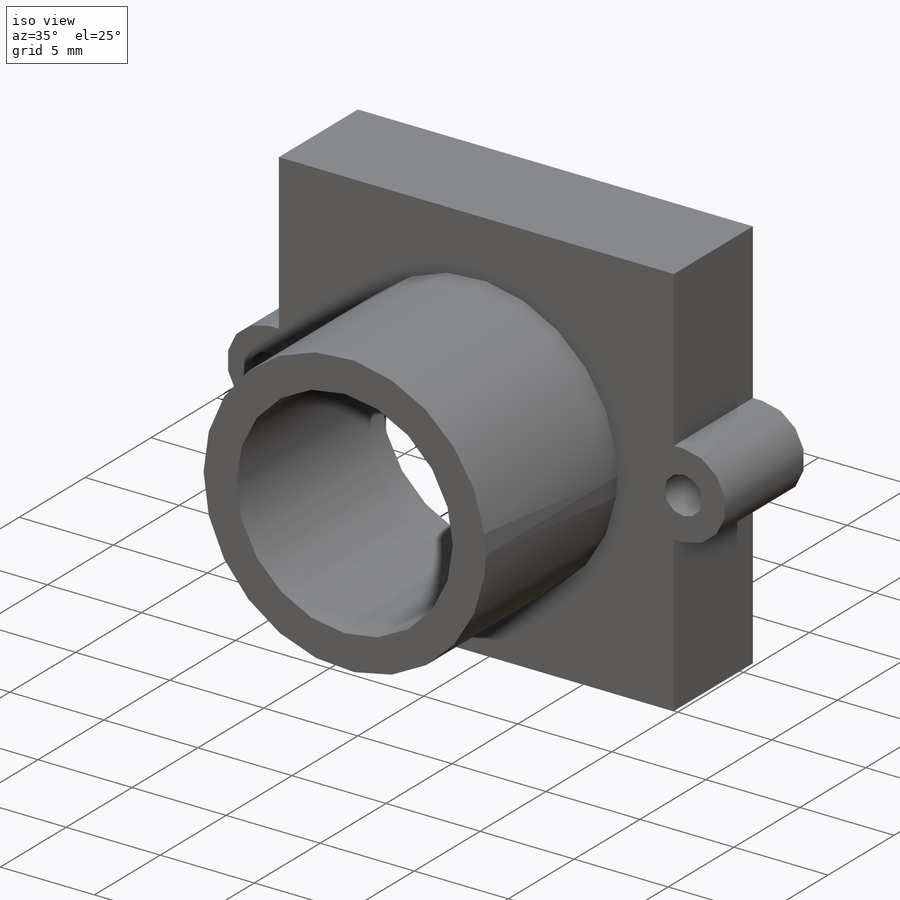
[diagram: iso view]
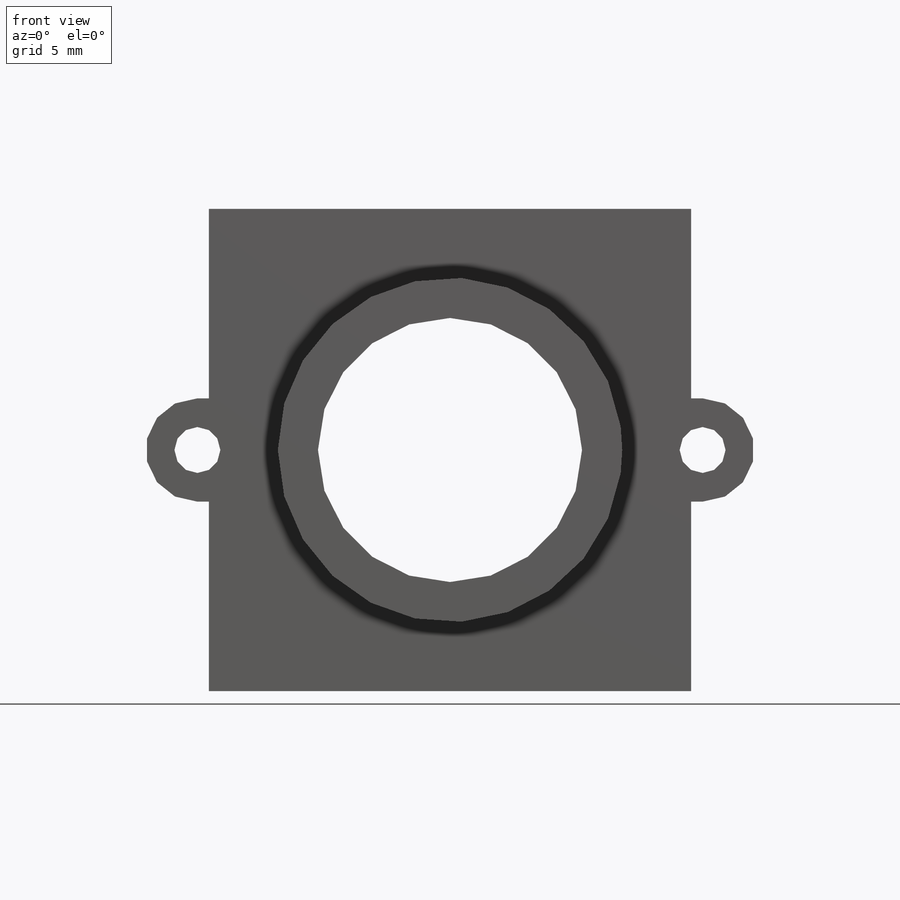
[diagram: front view]
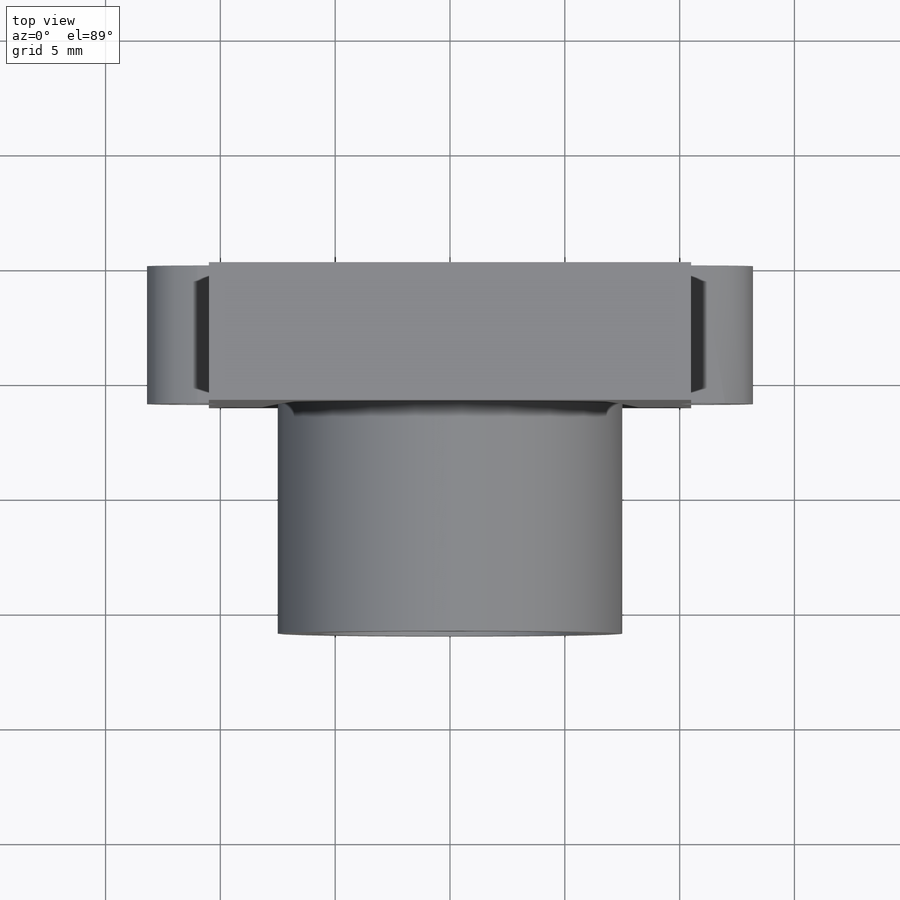
[diagram: top view]
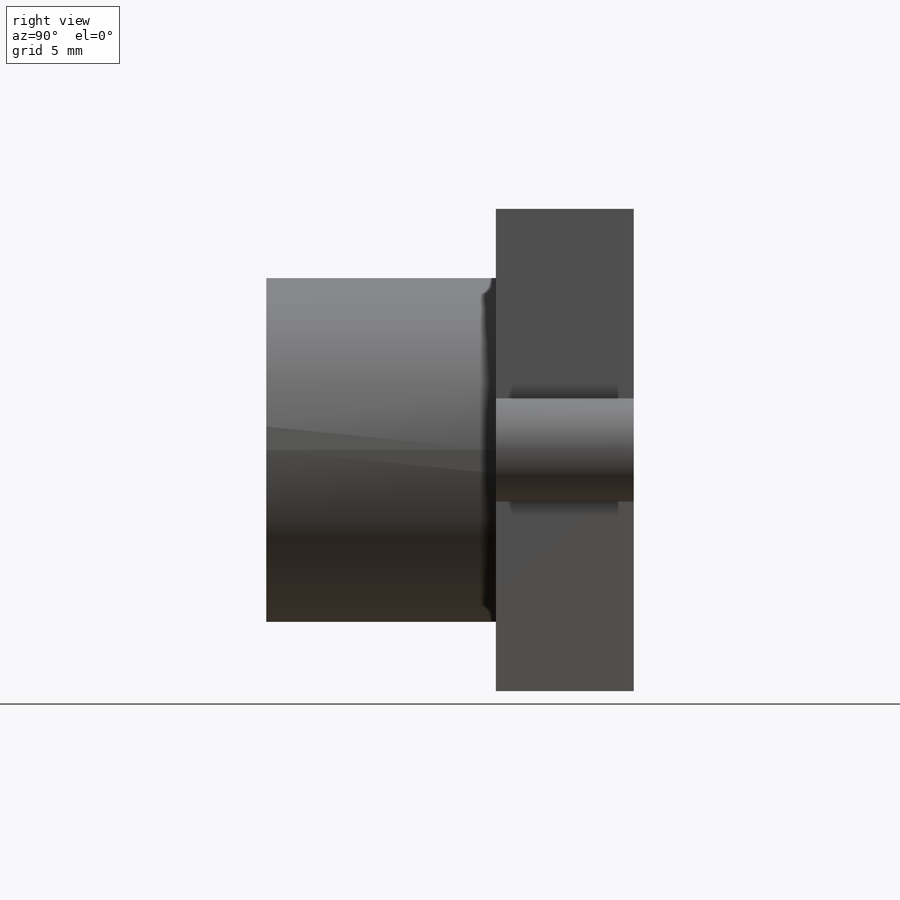
[diagram: right view]
SOLIDWORKS PART (.sldprt)
format: sldprt  version: not decoded by parser v0  size: 345,088 bytes
history: native  units: mm
features: sketch x7, extrude x3, hole x2, material x1, thread x1, move_body x1 (+12 scaffold rows collapsed; 1 parser-record rows omitted)
feature tree (28):
  scaffold x12  (default folders/planes/origin — collapsed)
  material  "Custom Plastic"
  sketch  "Base sketch"  dims[c1.D2=2.25mm c1.D3=2.25mm c1.D1=21.0mm c1.D4=21.0mm c1.D5=22.0mm c1.D6=1.5mm c1.D7=1.5mm c1.D8=1.5mm c1.D9=1.5mm c1.D10=45.0deg c2.D10=21.9mm c2.D11=45.0deg c3.D11=~6.485639mm]
  extrude  "Base hull"  Depth=5mm
  extrude  "Base cover"  [1 undecoded]
  sketch  "Base sketch<2>"  dims[D1=1.0mm]
  sketch  "Lens hole hull base sketch"  dims[D1=15.0mm]
  extrude  "Lens hole hull"  Depth=10mm
  hole  "Lens hole"  [1 undecoded]
  sketch  "Sketch4"
  thread  "Hole Thread1"  Diameter=12mm  [1 undecoded]
  sketch  "Sketch3"  dims[hole-wizard template sketch: 59 standard entries collapsed; hole parameters kept: c18.Thru Tap Drill Dia.=11.5mm c18.Thru Tap Drill Depth=16.0mm]
  hole  "Mount holes"  Diameter=2mm Depth=6mm
  sketch  "Sketch7"
  sketch  "Sketch6"  dims[hole-wizard template sketch: 60 standard entries collapsed; hole parameters kept: c18.Thru Hole Depth=6.0mm]
  move_body  "Pull base to origin"
  parser-record x1  (decoder bookkeeping rows leaked as tree rows — omitted from the tree; the rows remain in map.json)
decode coverage: 9 of 14 modeling features carry decoded parameters
note: ~ marks probable driven/reference dimensions
note: 3 parameter values undecoded
note: suppression state not decoded; provenance and decode notes live in map.json
